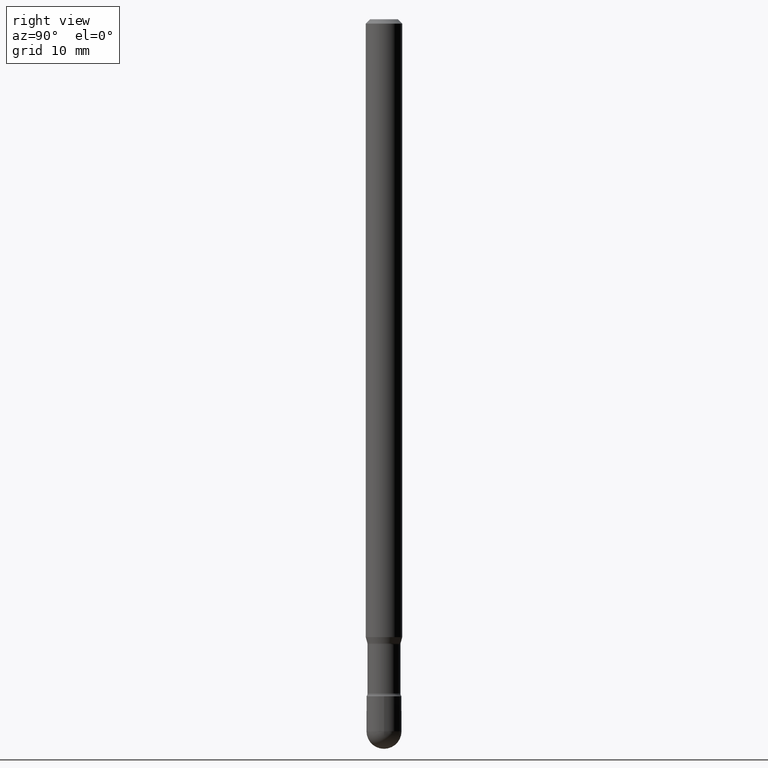
[diagram: clean part render]
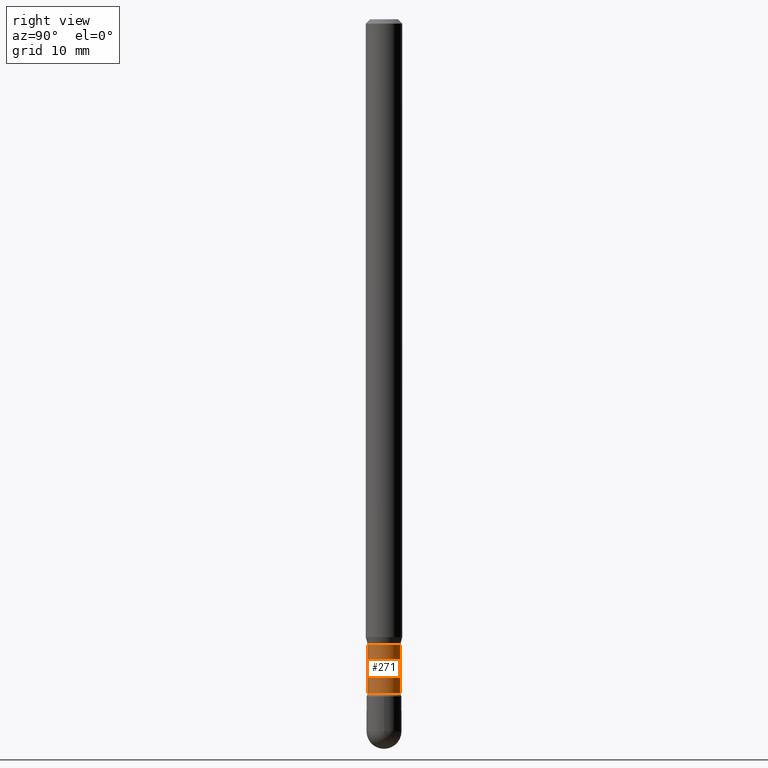
[diagram: same view with one face highlighted and labeled with its STEP entity id]
A machine part, right view. The second image highlights one B-rep face of the part: STEP entity #271.
In plain terms, the highlighted cylindrical surface (edge-blend (fillet) strip) has radius 1.4326 mm, axis along (-0, 0, 1).
Its self-contained STEP definition (entity closure, byte-faithful):
#3 = EDGE_CURVE ( 'NONE', #201, #42, #99, .T. ) ;
#11 = AXIS2_PLACEMENT_3D ( 'NONE', #533, #375, #50 ) ;
#42 = VERTEX_POINT ( 'NONE', #399 ) ;
#50 = DIRECTION ( 'NONE',  ( -6.982962677686265133E-15, -1.000000000000000000, 4.843702116425997641E-15 ) ) ;
#55 = CIRCLE ( 'NONE', #540, 0.05639999999999998487 ) ;
#57 = VECTOR ( 'NONE', #102, 39.37007874015748143 ) ;
#70 = FACE_OUTER_BOUND ( 'NONE', #556, .T. ) ;
#71 = CARTESIAN_POINT ( 'NONE',  ( -1.169113584055446105E-44, 1.669184350826100908E-30, 4.780733988912460139E-16 ) ) ;
#86 = EDGE_CURVE ( 'NONE', #367, #42, #55, .T. ) ;
#99 = LINE ( 'NONE', #286, #57 ) ;
#102 = DIRECTION ( 'NONE',  ( -2.445517834592790864E-29, 3.491411127372860730E-15, 1.000000000000000000 ) ) ;
#118 = VECTOR ( 'NONE', #511, 39.37007874015748143 ) ;
#122 = DIRECTION ( 'NONE',  ( -6.982962677686265922E-15, -1.000000000000000000, 3.491411127372860730E-15 ) ) ;
#179 = DIRECTION ( 'NONE',  ( -2.445517834592790864E-29, 3.491411127372861124E-15, 1.000000000000000000 ) ) ;
#194 = EDGE_CURVE ( 'NONE', #564, #201, #231, .T. ) ;
#201 = VERTEX_POINT ( 'NONE', #250 ) ;
#226 = ORIENTED_EDGE ( 'NONE', *, *, #3, .T. ) ;
#231 = CIRCLE ( 'NONE', #11, 0.05640000000000001262 ) ;
#238 = CARTESIAN_POINT ( 'NONE',  ( -3.938390950214490011E-16, -0.05640000000000808256, -2.310251153914436806 ) ) ;
#250 = CARTESIAN_POINT ( 'NONE',  ( 4.135358722124349213E-16, 0.05639999999999194269, -2.310251153914437250 ) ) ;
#271 = ADVANCED_FACE ( 'NONE', ( #70 ), #516, .T. ) ;
#286 = CARTESIAN_POINT ( 'NONE',  ( 4.007461029686963973E-16, 0.05639999999999999181, 2.811578113074167152E-16 ) ) ;
#337 = ORIENTED_EDGE ( 'NONE', *, *, #194, .T. ) ;
#340 = EDGE_CURVE ( 'NONE', #564, #367, #476, .T. ) ;
#347 = DIRECTION ( 'NONE',  ( -2.445517834592790864E-29, 3.491411127372861124E-15, 1.000000000000000000 ) ) ;
#356 = DIRECTION ( 'NONE',  ( -6.982962677686265133E-15, -1.000000000000000000, 4.843702116426000007E-15 ) ) ;
#367 = VERTEX_POINT ( 'NONE', #388 ) ;
#375 = DIRECTION ( 'NONE',  ( -2.445517834592790864E-29, 3.491411127372861124E-15, 1.000000000000000000 ) ) ;
#388 = CARTESIAN_POINT ( 'NONE',  ( -3.938390950214528468E-16, -0.05640000000000746500, -2.141974787463810870 ) ) ;
#391 = CARTESIAN_POINT ( 'NONE',  ( -3.938390950215053553E-16, -0.05639999999999999181, 6.749889864750753619E-16 ) ) ;
#399 = CARTESIAN_POINT ( 'NONE',  ( 4.007461029687528995E-16, 0.05639999999999250474, -2.141974787463811314 ) ) ;
#434 = CARTESIAN_POINT ( 'NONE',  ( 5.238237543990852603E-29, -7.478514607503268714E-15, -2.141974787463811314 ) ) ;
#454 = ORIENTED_EDGE ( 'NONE', *, *, #86, .F. ) ;
#456 = AXIS2_PLACEMENT_3D ( 'NONE', #71, #347, #122 ) ;
#476 = LINE ( 'NONE', #391, #118 ) ;
#490 = ORIENTED_EDGE ( 'NONE', *, *, #340, .F. ) ;
#511 = DIRECTION ( 'NONE',  ( -2.445517834592790864E-29, 3.491411127372860730E-15, 1.000000000000000000 ) ) ;
#516 = CYLINDRICAL_SURFACE ( 'NONE', #456, 0.05639999999999999181 ) ;
#533 = CARTESIAN_POINT ( 'NONE',  ( 5.649760399286329776E-29, -8.066036585802858688E-15, -2.310251153914436806 ) ) ;
#540 = AXIS2_PLACEMENT_3D ( 'NONE', #434, #179, #356 ) ;
#556 = EDGE_LOOP ( 'NONE', ( #337, #226, #454, #490 ) ) ;
#564 = VERTEX_POINT ( 'NONE', #238 ) ;